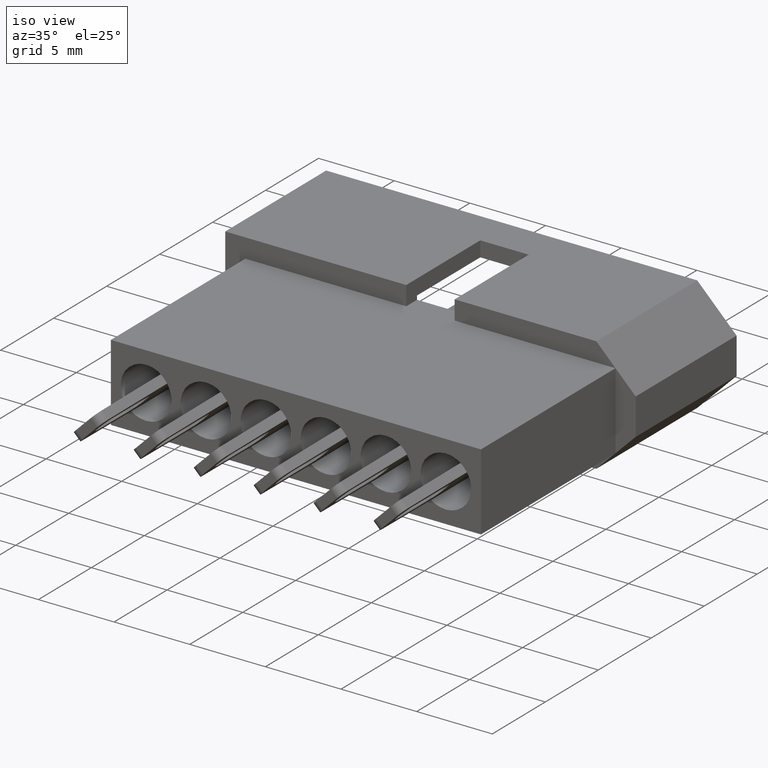
[diagram: clean part render]
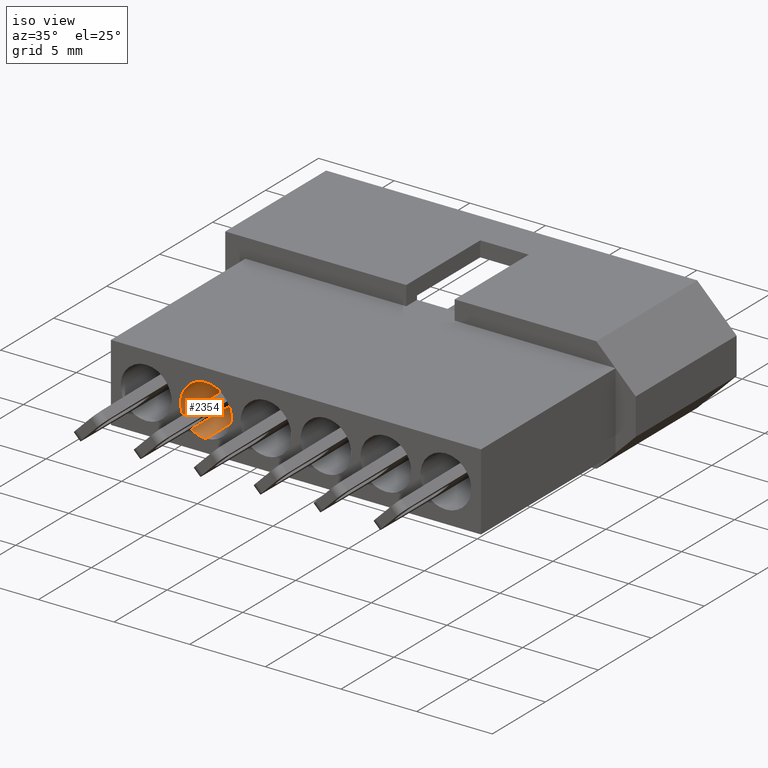
[diagram: same view with one face highlighted and labeled with its STEP entity id]
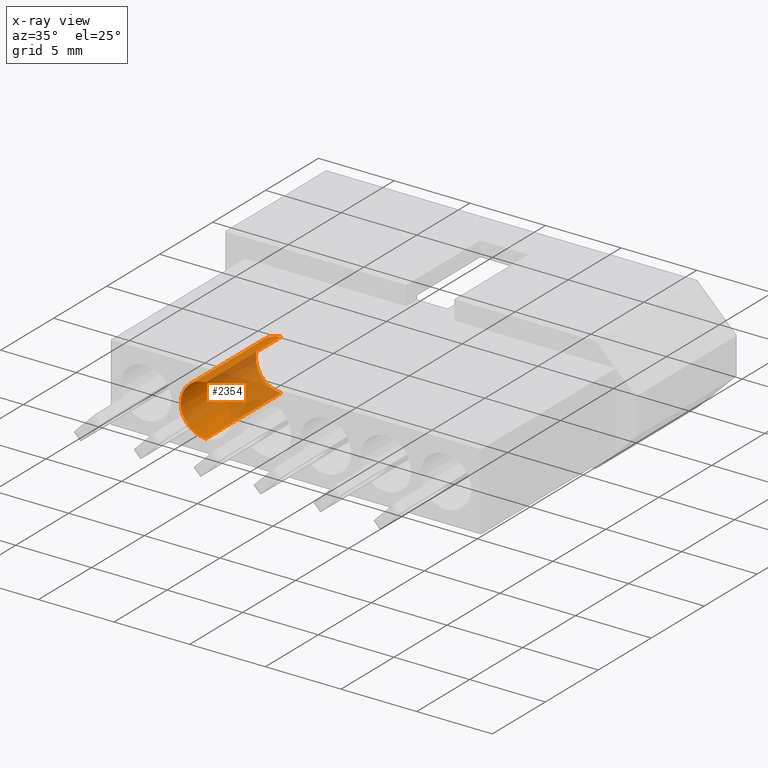
[diagram: x-ray of the same camera — body ghosted, the highlighted face saturated]
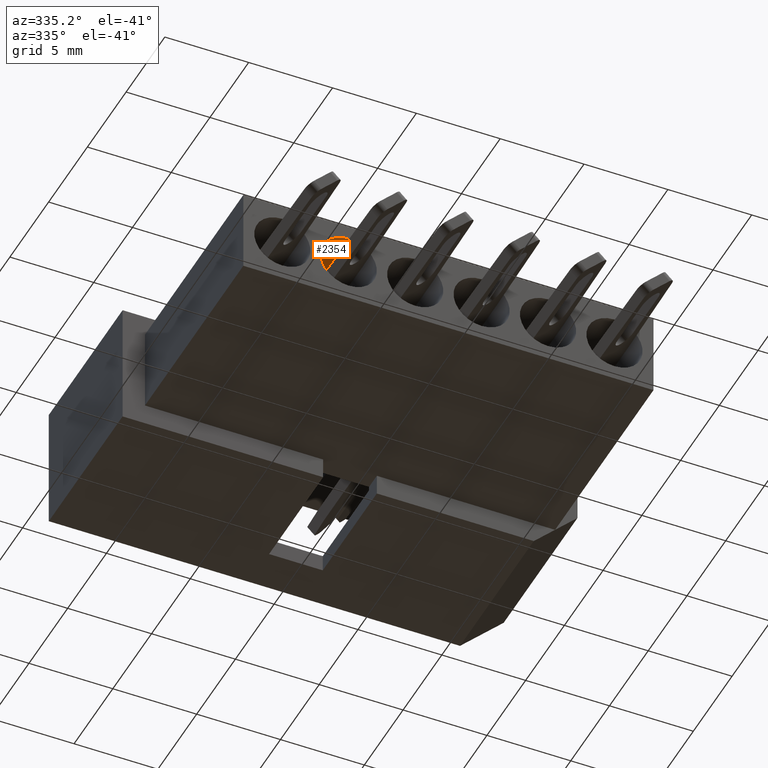
[diagram: same view with one face highlighted and labeled with its STEP entity id]
A machine part, iso view. The second image highlights one B-rep face of the part: STEP entity #2354.
The next image is the same camera in x-ray: the body ghosted, the highlighted face saturated — about 54% of this face is hidden behind the body in this view.
A second angle (auxiliary view) of the same face is appended — the face is thin or edge-on in the first view.
In plain terms, the highlighted cylindrical surface (edge-blend (fillet) strip) has radius 1.6764 mm, axis along (0, 1, 0).
Its self-contained STEP definition (entity closure, byte-faithful):
#262 = VERTEX_POINT ( 'NONE', #8806 ) ;
#376 = ORIENTED_EDGE ( 'NONE', *, *, #9317, .F. ) ;
#548 = ORIENTED_EDGE ( 'NONE', *, *, #6468, .T. ) ;
#717 = DIRECTION ( 'NONE',  ( -0.0000000000000000000, 1.000000000000000000, 1.232274823563231000E-016 ) ) ;
#1222 = ORIENTED_EDGE ( 'NONE', *, *, #9303, .T. ) ;
#1549 = LINE ( 'NONE', #2992, #7208 ) ;
#1642 = CARTESIAN_POINT ( 'NONE',  ( 3.962399999999999700, -5.588000000000001000, -1.676400000000000600 ) ) ;
#1901 = LINE ( 'NONE', #7930, #5737 ) ;
#2112 = CIRCLE ( 'NONE', #4919, 1.676399999999999900 ) ;
#2180 = FACE_OUTER_BOUND ( 'NONE', #4130, .T. ) ;
#2187 = DIRECTION ( 'NONE',  ( -0.0000000000000000000, 1.000000000000000000, 1.232274823563231000E-016 ) ) ;
#2354 = ADVANCED_FACE ( 'NONE', ( #2180 ), #3896, .F. ) ;
#2435 = DIRECTION ( 'NONE',  ( 0.0000000000000000000, 0.0000000000000000000, 1.000000000000000000 ) ) ;
#2487 = EDGE_CURVE ( 'NONE', #262, #3153, #4476, .T. ) ;
#2746 = AXIS2_PLACEMENT_3D ( 'NONE', #9361, #2855, #2796 ) ;
#2796 = DIRECTION ( 'NONE',  ( 0.0000000000000000000, 0.0000000000000000000, 1.000000000000000000 ) ) ;
#2855 = DIRECTION ( 'NONE',  ( -0.0000000000000000000, 1.000000000000000000, 1.232274823563231000E-016 ) ) ;
#2992 = CARTESIAN_POINT ( 'NONE',  ( 3.962399999999999700, 2.313668333221628800, -1.676399999999999700 ) ) ;
#3153 = VERTEX_POINT ( 'NONE', #7732 ) ;
#3516 = CARTESIAN_POINT ( 'NONE',  ( 3.962399999999999700, -5.588000000000001000, -9.737026951175853700E-016 ) ) ;
#3895 = CARTESIAN_POINT ( 'NONE',  ( 3.962399999999999700, -12.69999999999999900, -1.850096549635755000E-015 ) ) ;
#3896 = CYLINDRICAL_SURFACE ( 'NONE', #2746, 1.676399999999999700 ) ;
#4130 = EDGE_LOOP ( 'NONE', ( #8809, #1222, #548, #376 ) ) ;
#4476 = CIRCLE ( 'NONE', #6217, 1.676399999999999700 ) ;
#4572 = CARTESIAN_POINT ( 'NONE',  ( 3.962399999999999700, -5.588000000000001000, 1.676399999999999200 ) ) ;
#4878 = DIRECTION ( 'NONE',  ( 0.0000000000000000000, 0.0000000000000000000, 1.000000000000000000 ) ) ;
#4919 = AXIS2_PLACEMENT_3D ( 'NONE', #3516, #6392, #4878 ) ;
#5737 = VECTOR ( 'NONE', #2187, 1000.000000000000000 ) ;
#6217 = AXIS2_PLACEMENT_3D ( 'NONE', #3895, #6803, #2435 ) ;
#6392 = DIRECTION ( 'NONE',  ( -0.0000000000000000000, 1.000000000000000000, 1.232274823563231000E-016 ) ) ;
#6468 = EDGE_CURVE ( 'NONE', #8780, #7144, #2112, .T. ) ;
#6803 = DIRECTION ( 'NONE',  ( -0.0000000000000000000, 1.000000000000000000, 1.232274823563231000E-016 ) ) ;
#7144 = VERTEX_POINT ( 'NONE', #4572 ) ;
#7208 = VECTOR ( 'NONE', #717, 1000.000000000000000 ) ;
#7732 = CARTESIAN_POINT ( 'NONE',  ( 3.962399999999999700, -12.69999999999999900, 1.676399999999997900 ) ) ;
#7930 = CARTESIAN_POINT ( 'NONE',  ( 3.962399999999999700, 2.313668333221628800, 1.676399999999999700 ) ) ;
#8780 = VERTEX_POINT ( 'NONE', #1642 ) ;
#8806 = CARTESIAN_POINT ( 'NONE',  ( 3.962399999999999700, -12.69999999999999900, -1.676400000000001700 ) ) ;
#8809 = ORIENTED_EDGE ( 'NONE', *, *, #2487, .F. ) ;
#9303 = EDGE_CURVE ( 'NONE', #262, #8780, #1549, .T. ) ;
#9317 = EDGE_CURVE ( 'NONE', #3153, #7144, #1901, .T. ) ;
#9361 = CARTESIAN_POINT ( 'NONE',  ( 3.962399999999999700, 2.313668333221628800, 0.0000000000000000000 ) ) ;